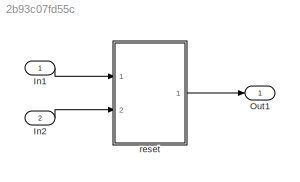
MODEL slx_2b93c07fd55c
KIND model
CONFIG AbsTol = auto
CONFIG EnableMultiTasking = off
CONFIG FixedStep = auto
CONFIG MaxStep = auto
CONFIG MinStep = auto
CONFIG RelTol = 1e-3
CONFIG SampleTimeConstraint = Unconstrained
CONFIG Solver = FixedStepDiscrete
CONFIG SolverName = FixedStepDiscrete
CONFIG StartTime = 0.0
CONFIG StopTime = 10.0
BLOCK [Inport] In1
  IconDisplay = Port number
BLOCK [Inport] In2
  IconDisplay = Port number
  Port = 2
BLOCK [Outport] Out1
  IconDisplay = Port number
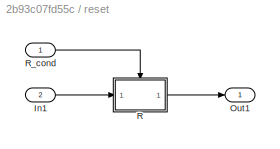
BLOCK [SubSystem] reset
  AncestorBlock = Block_TestLib/reset
  Ports = [2, 1]
  RequestExecContextInheritance = off
  Variant = off
BLOCK [Inport] reset/In1
  IconDisplay = Port number
  Port = 2
BLOCK [Outport] reset/Out1
  IconDisplay = Port number
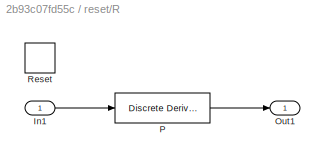
BLOCK [SubSystem] reset/R
  Ports = [1, 1, 0, 0, 0, 0, 0, 0, 1]
  RequestExecContextInheritance = off
  TreatAsAtomicUnit = on
  Variant = off
BLOCK [Inport] reset/R/In1
  IconDisplay = Port number
BLOCK [Outport] reset/R/Out1
  IconDisplay = Port number
BLOCK [Reference] reset/R/P  REF=simulink/Discrete/Discrete Derivative
  Ports = [1, 1]
  SourceBlock = simulink/Discrete/Discrete Derivative
  SourceProductBaseCode = SL
  SourceProductName = Simulink
  SourceType = Discrete Derivative
BLOCK [ResetPort] reset/R/Reset
  DisableCoverage = on
BLOCK [Inport] reset/R_cond
  IconDisplay = Port number
  OutDataTypeStr = boolean
LINE In1:1 -> reset:1
LINE In2:1 -> reset:2
LINE reset:1 -> Out1:1
